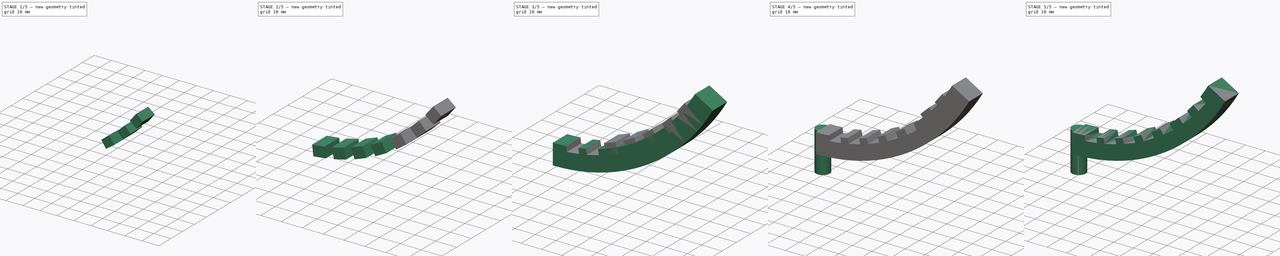
[diagram: build sequence overview — one tinted view per stage of 5, left to right]
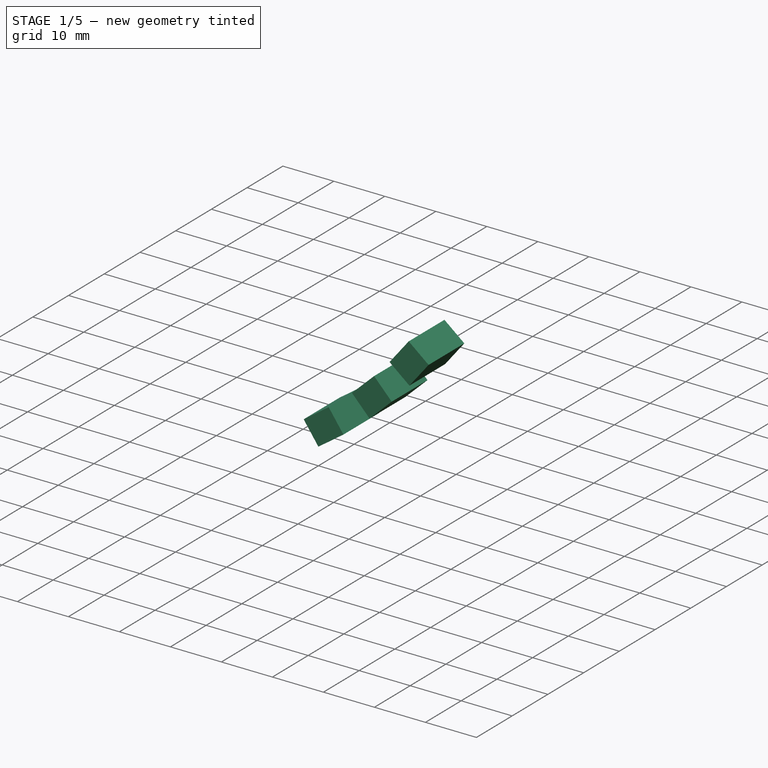
[diagram: stage 1 of 5 — iso view after this stage's code; geometry added in this stage tinted green]
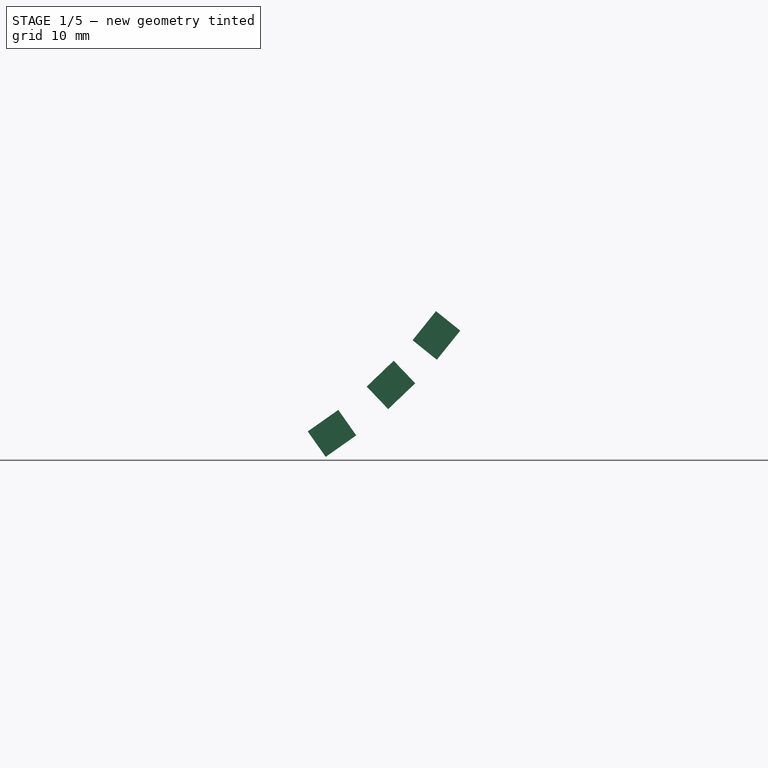
[diagram: stage 1 of 5 — front view after this stage's code; geometry added in this stage tinted green]
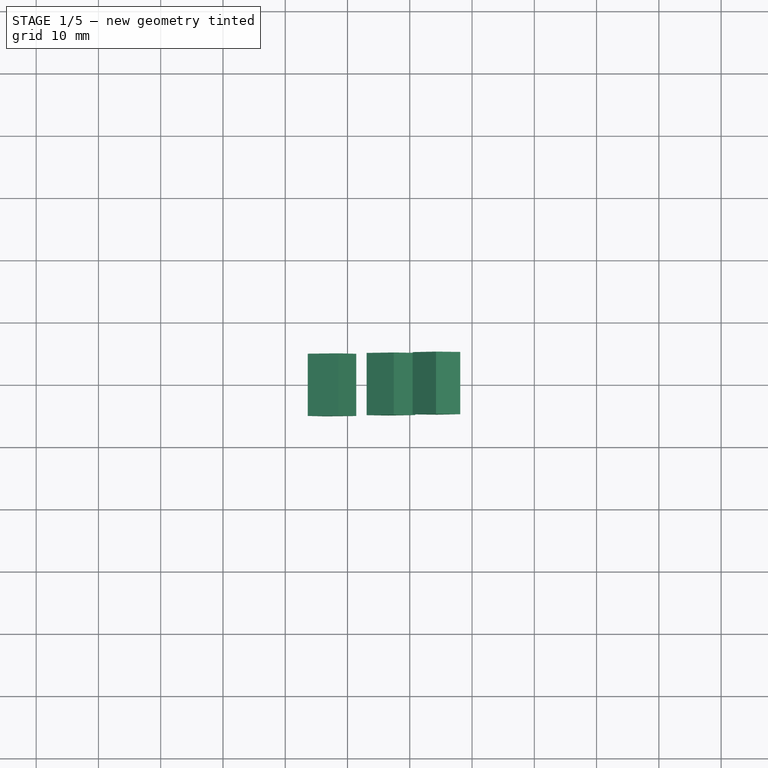
[diagram: stage 1 of 5 — top view after this stage's code; geometry added in this stage tinted green]
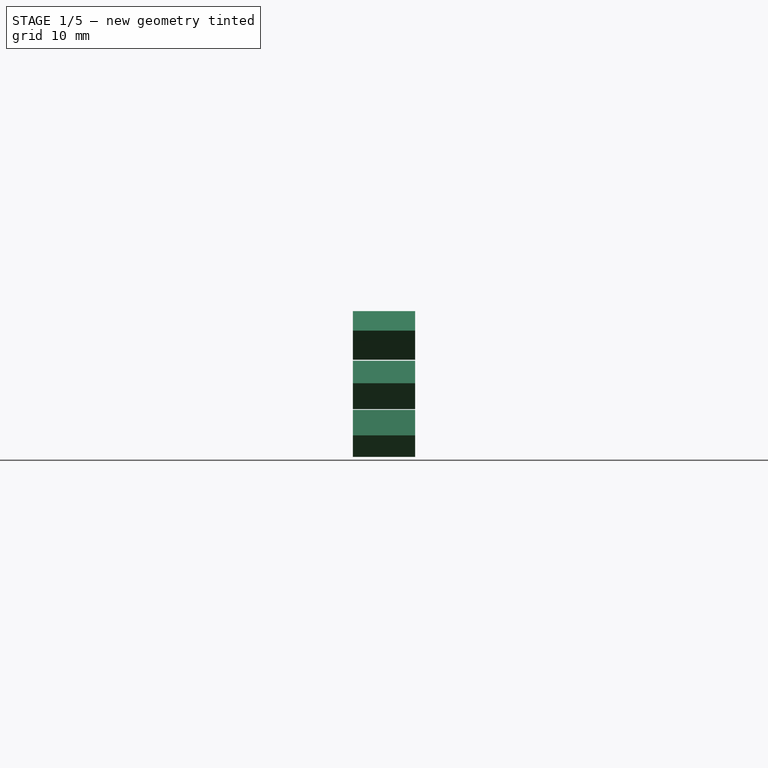
[diagram: stage 1 of 5 — right view after this stage's code; geometry added in this stage tinted green]
FCSTD DOCUMENT  (FreeCAD 0.18.4R)
Label: sketch_pcb
License: All rights reserved
LicenseURL: http://en.wikipedia.org/wiki/All_rights_reserved
objects: Sketcher::SketchObject×11, Part::Extrusion×9, Part::Cut×7, Part::MultiFuse×1
note: 28 computed .brp shape members not serialized (recipe doc carries the construction recipe); baked Part::Feature solids carry a one-line shape summary decoded from their .brp

FEATURE [Sketcher::SketchObject] Sketch010
  sketch-geometry (4):
    g0: LineSegment StartX=-3 StartY=5 StartZ=0 EndX=3 EndY=5 EndZ=0
    g1: LineSegment StartX=3 StartY=5 StartZ=0 EndX=3 EndY=-5 EndZ=0
    g2: LineSegment StartX=3 StartY=-5 StartZ=0 EndX=-3 EndY=-5 EndZ=0
    g3: LineSegment StartX=-3 StartY=-5 StartZ=0 EndX=-3 EndY=5 EndZ=0
  constraints (12):
    c: Coincident(g0,g1)
    c: Coincident(g1,g2)
    c: Coincident(g2,g3)
    c: Coincident(g3,g0)
    c: Horizontal(g0)
    c: Horizontal(g2)
    c: Vertical(g1)
    c: Vertical(g3)
    c: Distance(g0) = 6
    c: Distance(g1) = 10
    c: Distance(g-1,g2) = 5
    c: Distance(g-1,g1) = 3
FEATURE [Part::Extrusion] Extrude011
  Base = -> Sketch010
  Dir = (0,0,1)
  DirMode = 2
  FaceMakerClass = Part::FaceMakerBullseye
  LengthFwd = 5
  LengthRev = 0
  Placement = pos=(47.5086,0,25.0524) rot=(0,-1,0;0.613658rad)
  Solid = true
  Symmetric = true
FEATURE [Sketcher::SketchObject] Sketch011
  sketch-geometry (4):
    g0: LineSegment StartX=-3 StartY=5 StartZ=0 EndX=3 EndY=5 EndZ=0
    g1: LineSegment StartX=3 StartY=5 StartZ=0 EndX=3 EndY=-5 EndZ=0
    g2: LineSegment StartX=3 StartY=-5 StartZ=0 EndX=-3 EndY=-5 EndZ=0
    g3: LineSegment StartX=-3 StartY=-5 StartZ=0 EndX=-3 EndY=5 EndZ=0
  constraints (12):
    c: Coincident(g0,g1)
    c: Coincident(g1,g2)
    c: Coincident(g2,g3)
    c: Coincident(g3,g0)
    c: Horizontal(g0)
    c: Horizontal(g2)
    c: Vertical(g1)
    c: Vertical(g3)
    c: Distance(g0) = 6
    c: Distance(g1) = 10
    c: Distance(g-1,g2) = 5
    c: Distance(g-1,g1) = 3
FEATURE [Part::Extrusion] Extrude012
  Base = -> Sketch011
  Dir = (0,0,1)
  DirMode = 2
  FaceMakerClass = Part::FaceMakerBullseye
  LengthFwd = 5
  LengthRev = 0
  Placement = pos=(56.977,0,32.8353) rot=(0,-1,0;0.76236rad)
  Solid = true
  Symmetric = true
FEATURE [Sketcher::SketchObject] Sketch012
  sketch-geometry (4):
    g0: LineSegment StartX=-3 StartY=5 StartZ=0 EndX=3 EndY=5 EndZ=0
    g1: LineSegment StartX=3 StartY=5 StartZ=0 EndX=3 EndY=-5 EndZ=0
    g2: LineSegment StartX=3 StartY=-5 StartZ=0 EndX=-3 EndY=-5 EndZ=0
    g3: LineSegment StartX=-3 StartY=-5 StartZ=0 EndX=-3 EndY=5 EndZ=0
  constraints (12):
    c: Coincident(g0,g1)
    c: Coincident(g1,g2)
    c: Coincident(g2,g3)
    c: Coincident(g3,g0)
    c: Horizontal(g0)
    c: Horizontal(g2)
    c: Vertical(g1)
    c: Vertical(g3)
    c: Distance(g0) = 6
    c: Distance(g1) = 10
    c: Distance(g-1,g2) = 5
    c: Distance(g-1,g1) = 3
FEATURE [Part::Extrusion] Extrude013
  Base = -> Sketch012
  Dir = (0,0,1)
  DirMode = 2
  FaceMakerClass = Part::FaceMakerBullseye
  LengthFwd = 5
  LengthRev = 0
  Placement = pos=(64.2773,0,40.7827) rot=(0,-1,0;0.89326rad)
  Solid = true
  Symmetric = true
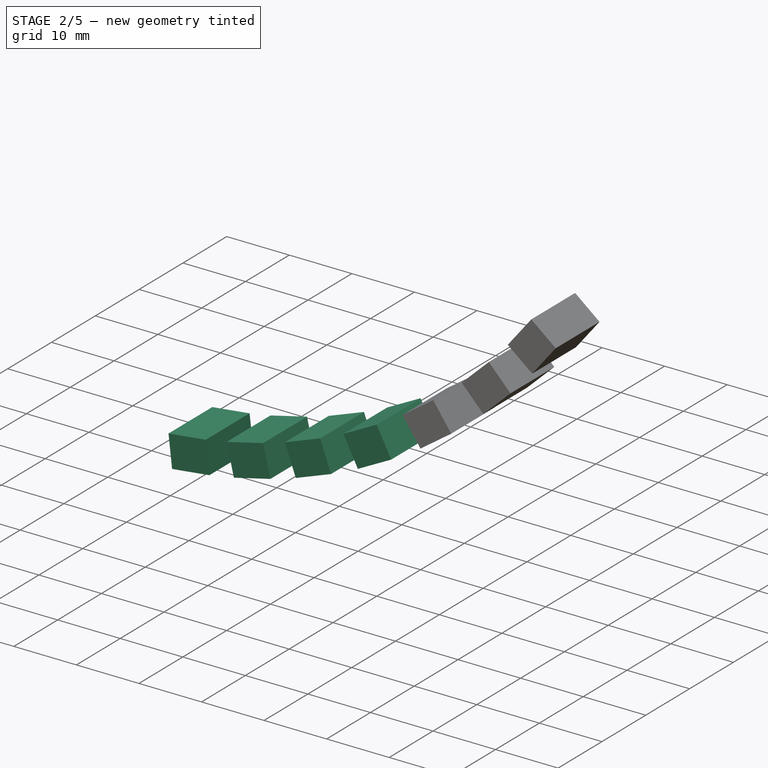
[diagram: stage 2 of 5 — iso view after this stage's code; geometry added in this stage tinted green]
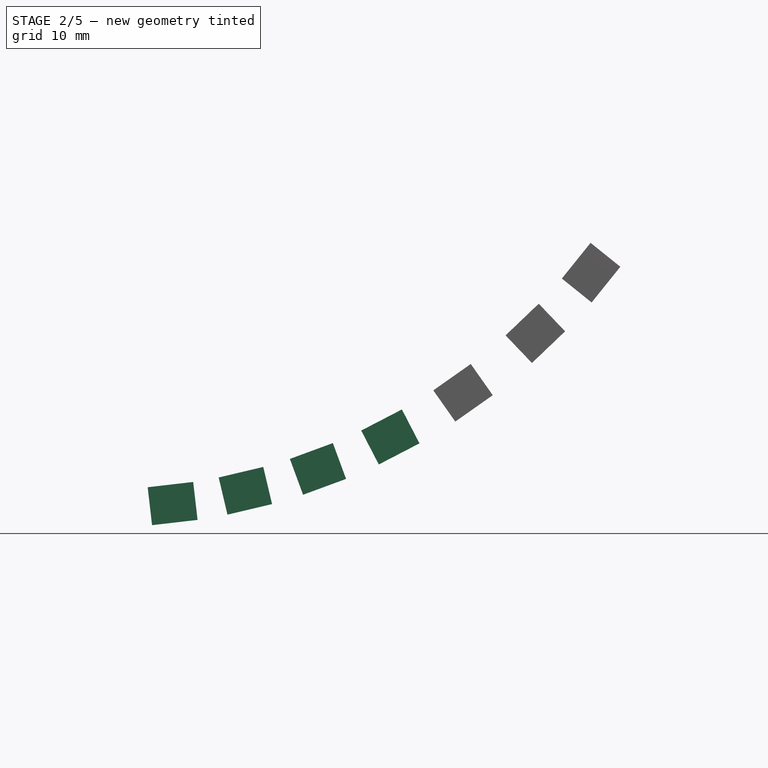
[diagram: stage 2 of 5 — front view after this stage's code; geometry added in this stage tinted green]
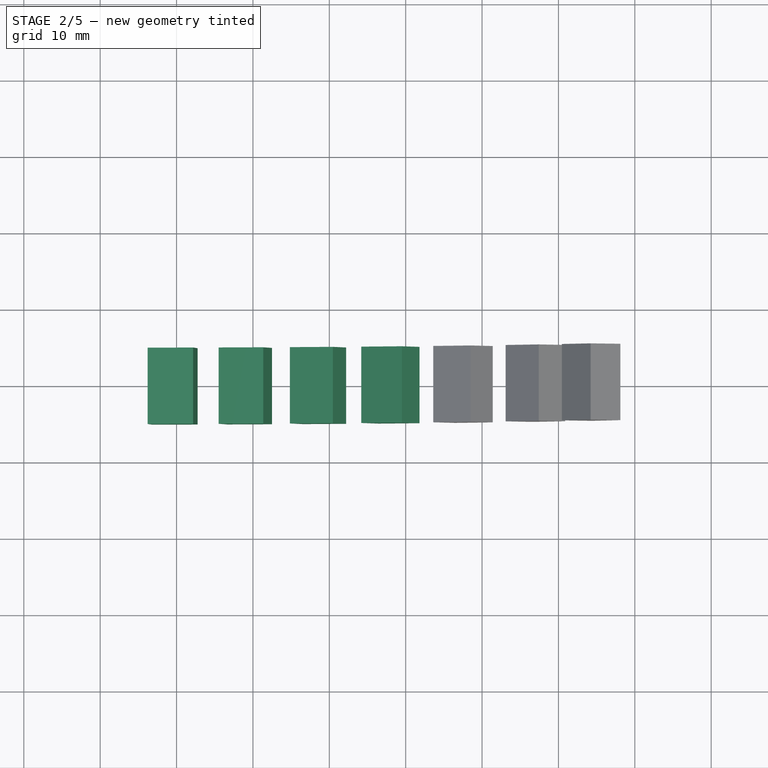
[diagram: stage 2 of 5 — top view after this stage's code; geometry added in this stage tinted green]
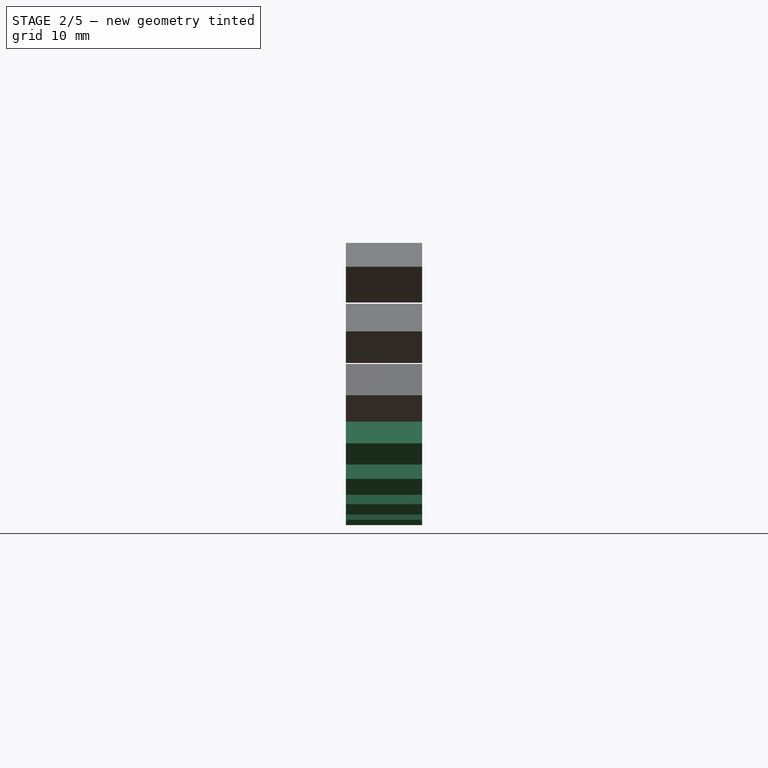
[diagram: stage 2 of 5 — right view after this stage's code; geometry added in this stage tinted green]
FEATURE [Sketcher::SketchObject] Sketch005
  sketch-geometry (4):
    g0: LineSegment StartX=-3 StartY=5 StartZ=0 EndX=3 EndY=5 EndZ=0
    g1: LineSegment StartX=3 StartY=5 StartZ=0 EndX=3 EndY=-5 EndZ=0
    g2: LineSegment StartX=3 StartY=-5 StartZ=0 EndX=-3 EndY=-5 EndZ=0
    g3: LineSegment StartX=-3 StartY=-5 StartZ=0 EndX=-3 EndY=5 EndZ=0
  constraints (12):
    c: Coincident(g0,g1)
    c: Coincident(g1,g2)
    c: Coincident(g2,g3)
    c: Coincident(g3,g0)
    c: Horizontal(g0)
    c: Horizontal(g2)
    c: Vertical(g1)
    c: Vertical(g3)
    c: Distance(g0) = 6
    c: Distance(g1) = 10
    c: Distance(g-1,g2) = 5
    c: Distance(g-1,g1) = 3
FEATURE [Part::Extrusion] Extrude006
  Base = -> Sketch005
  Dir = (0,0,1)
  DirMode = 2
  FaceMakerClass = Part::FaceMakerBullseye
  LengthFwd = 5
  LengthRev = 0
  Placement = pos=(9.48231,0,10.5467) rot=(0,-1,0;0.115192rad)
  Solid = true
  Symmetric = true
FEATURE [Sketcher::SketchObject] Sketch007
  sketch-geometry (4):
    g0: LineSegment StartX=-3 StartY=5 StartZ=0 EndX=3 EndY=5 EndZ=0
    g1: LineSegment StartX=3 StartY=5 StartZ=0 EndX=3 EndY=-5 EndZ=0
    g2: LineSegment StartX=3 StartY=-5 StartZ=0 EndX=-3 EndY=-5 EndZ=0
    g3: LineSegment StartX=-3 StartY=-5 StartZ=0 EndX=-3 EndY=5 EndZ=0
  constraints (12):
    c: Coincident(g0,g1)
    c: Coincident(g1,g2)
    c: Coincident(g2,g3)
    c: Coincident(g3,g0)
    c: Horizontal(g0)
    c: Horizontal(g2)
    c: Vertical(g1)
    c: Vertical(g3)
    c: Distance(g0) = 6
    c: Distance(g1) = 10
    c: Distance(g-1,g2) = 5
    c: Distance(g-1,g1) = 3
FEATURE [Part::Extrusion] Extrude008
  Base = -> Sketch007
  Dir = (0,0,1)
  DirMode = 2
  FaceMakerClass = Part::FaceMakerBullseye
  LengthFwd = 5
  LengthRev = 0
  Placement = pos=(19.0071,0,12.2194) rot=(0,-1,0;0.232478rad)
  Solid = true
  Symmetric = true
FEATURE [Sketcher::SketchObject] Sketch008
  sketch-geometry (4):
    g0: LineSegment StartX=-3 StartY=5 StartZ=0 EndX=3 EndY=5 EndZ=0
    g1: LineSegment StartX=3 StartY=5 StartZ=0 EndX=3 EndY=-5 EndZ=0
    g2: LineSegment StartX=3 StartY=-5 StartZ=0 EndX=-3 EndY=-5 EndZ=0
    g3: LineSegment StartX=-3 StartY=-5 StartZ=0 EndX=-3 EndY=5 EndZ=0
  constraints (12):
    c: Coincident(g0,g1)
    c: Coincident(g1,g2)
    c: Coincident(g2,g3)
    c: Coincident(g3,g0)
    c: Horizontal(g0)
    c: Horizontal(g2)
    c: Vertical(g1)
    c: Vertical(g3)
    c: Distance(g0) = 6
    c: Distance(g1) = 10
    c: Distance(g-1,g2) = 5
    c: Distance(g-1,g1) = 3
FEATURE [Part::Extrusion] Extrude009
  Base = -> Sketch008
  Dir = (0,0,1)
  DirMode = 2
  FaceMakerClass = Part::FaceMakerBullseye
  LengthFwd = 5
  LengthRev = 0
  Placement = pos=(28.5141,0,15.0843) rot=(0,-1,0;0.352906rad)
  Solid = true
  Symmetric = true
FEATURE [Sketcher::SketchObject] Sketch009
  sketch-geometry (4):
    g0: LineSegment StartX=-3 StartY=5 StartZ=0 EndX=3 EndY=5 EndZ=0
    g1: LineSegment StartX=3 StartY=5 StartZ=0 EndX=3 EndY=-5 EndZ=0
    g2: LineSegment StartX=3 StartY=-5 StartZ=0 EndX=-3 EndY=-5 EndZ=0
    g3: LineSegment StartX=-3 StartY=-5 StartZ=0 EndX=-3 EndY=5 EndZ=0
  constraints (12):
    c: Coincident(g0,g1)
    c: Coincident(g1,g2)
    c: Coincident(g2,g3)
    c: Coincident(g3,g0)
    c: Horizontal(g0)
    c: Horizontal(g2)
    c: Vertical(g1)
    c: Vertical(g3)
    c: Distance(g0) = 6
    c: Distance(g1) = 10
    c: Distance(g-1,g2) = 5
    c: Distance(g-1,g1) = 3
FEATURE [Part::Extrusion] Extrude010
  Base = -> Sketch009
  Dir = (0,0,1)
  DirMode = 2
  FaceMakerClass = Part::FaceMakerBullseye
  LengthFwd = 5
  LengthRev = 0
  Placement = pos=(37.992,0,19.2685) rot=(0,-1,0;0.478569rad)
  Solid = true
  Symmetric = true
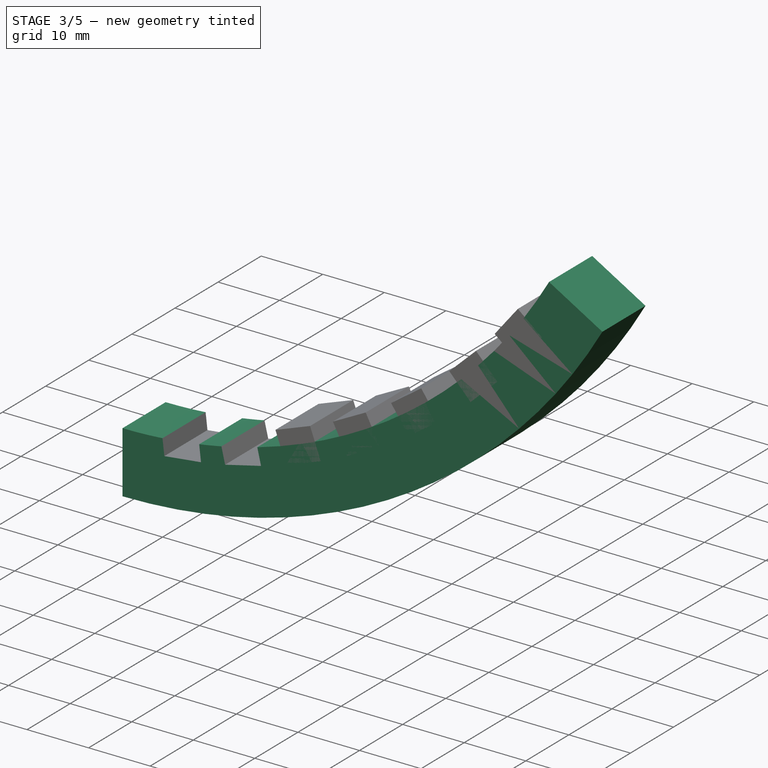
[diagram: stage 3 of 5 — iso view after this stage's code; geometry added in this stage tinted green]
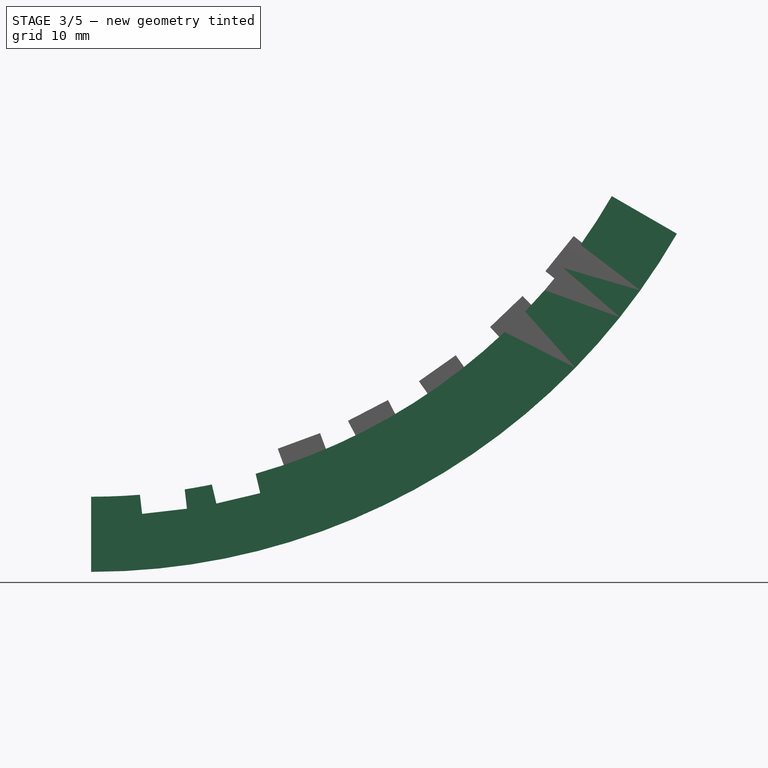
[diagram: stage 3 of 5 — front view after this stage's code; geometry added in this stage tinted green]
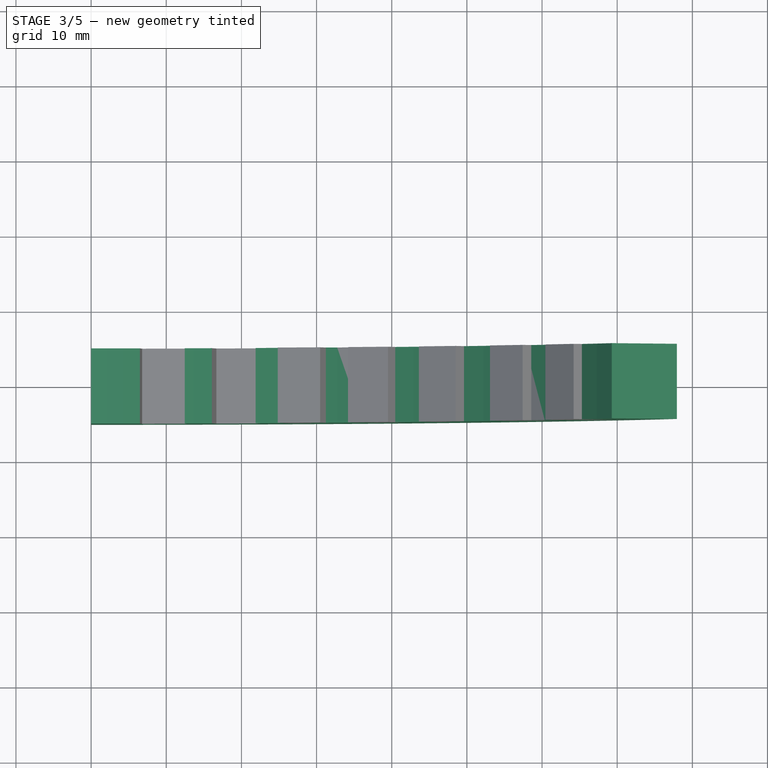
[diagram: stage 3 of 5 — top view after this stage's code; geometry added in this stage tinted green]
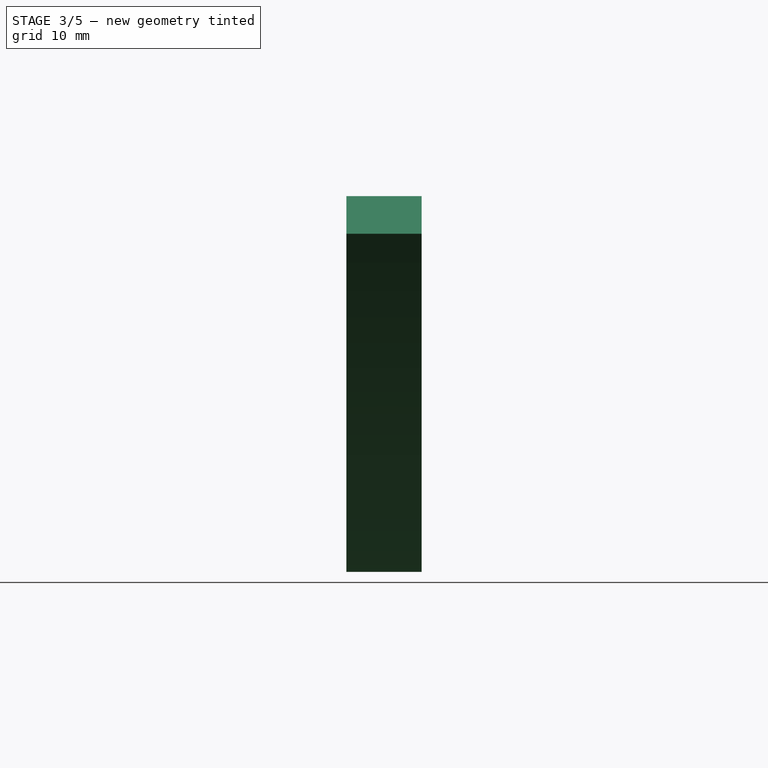
[diagram: stage 3 of 5 — right view after this stage's code; geometry added in this stage tinted green]
FEATURE [Sketcher::SketchObject] Sketch002
  Placement = pos=(0,0,0) rot=(1,0,0;1.5708rad)
  sketch-geometry (9):
    g0: ArcOfCircle CenterX=7.1888e-05 CenterY=90 CenterZ=0 NormalX=0 NormalY=0 NormalZ=1 AngleXU=0 Radius=90 StartAngle=4.71239 EndAngle=5.75959
    g1: LineSegment [constr] StartX=7.1888e-05 StartY=90 StartZ=0 EndX=77.9423 EndY=44.9999 EndZ=0
    g2: LineSegment [constr] StartX=7.1888e-05 StartY=90 StartZ=0 EndX=3.4e-14 EndY=0 EndZ=0
    g3: LineSegment [constr] StartX=3.4e-14 StartY=0 StartZ=0 EndX=50 EndY=0 EndZ=0
    g4: ArcOfCircle CenterX=7.1888e-05 CenterY=90 CenterZ=0 NormalX=0 NormalY=0 NormalZ=1 AngleXU=0 Radius=80 StartAngle=4.71239 EndAngle=5.75959
    g5: LineSegment [constr] StartX=3.4e-14 StartY=0 StartZ=0 EndX=3.4e-14 EndY=10 EndZ=0
    g6: LineSegment [constr] StartX=7.1888e-05 StartY=90 StartZ=0 EndX=69.2821 EndY=49.9999 EndZ=0
    g7: LineSegment StartX=69.2821 StartY=49.9999 StartZ=0 EndX=77.9423 EndY=44.9999 EndZ=0
    g8: LineSegment StartX=3.4e-14 StartY=10 StartZ=0 EndX=3.4e-14 EndY=0 EndZ=0
  constraints (24):
    c: Coincident(g-1,g0)
    c: Coincident(g1,g0)
    c: Coincident(g1,g0)
    c: Coincident(g2,g0)
    c: Coincident(g0,g2)
    c: Angle(g2,g1) = 1.0472
    c: Coincident(g3,g0)
    c: Horizontal(g3)
    c: Tangent(g0,g3)
    c: DistanceY(g2,g2) = 90
    c: Distance(g3) = 50
    c: Vertical(g5)
    c: DistanceY(g5,g5) = 10
    c: Coincident(g5,g0)
    c: Coincident(g4,g5)
    c: Coincident(g6,g0)
    c: Distance(g6) = 80
    c: Angle(g2,g6) = 1.0472
    c: Coincident(g4,g6)
    c: Coincident(g7,g4)
    c: Coincident(g0,g7)
    c: Coincident(g4,g8)
    c: Coincident(g8,g0)
    c: Radius(g4) = 80
FEATURE [Part::Extrusion] Extrude002
  Base = -> Sketch002
  Dir = (0,1,0)
  DirMode = 0
  FaceMakerClass = Part::FaceMakerBullseye
  LengthFwd = 10
  LengthRev = 0
  Solid = true
  Symmetric = true
FEATURE [Part::Cut] Cut
  Base = -> Extrude002
  Tool = -> Extrude006
FEATURE [Part::Cut] Cut001
  Base = -> Cut
  Tool = -> Extrude008
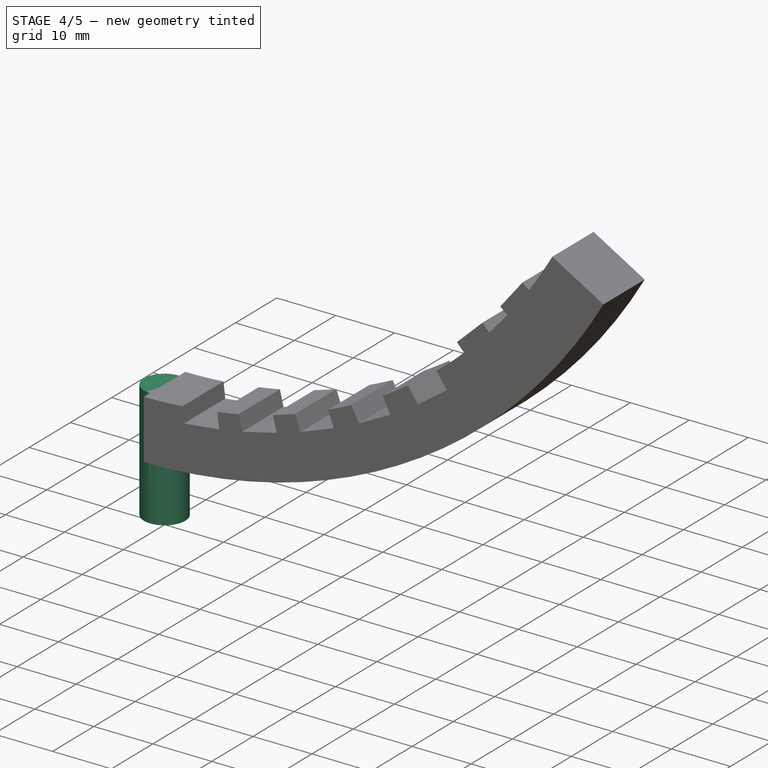
[diagram: stage 4 of 5 — iso view after this stage's code; geometry added in this stage tinted green]
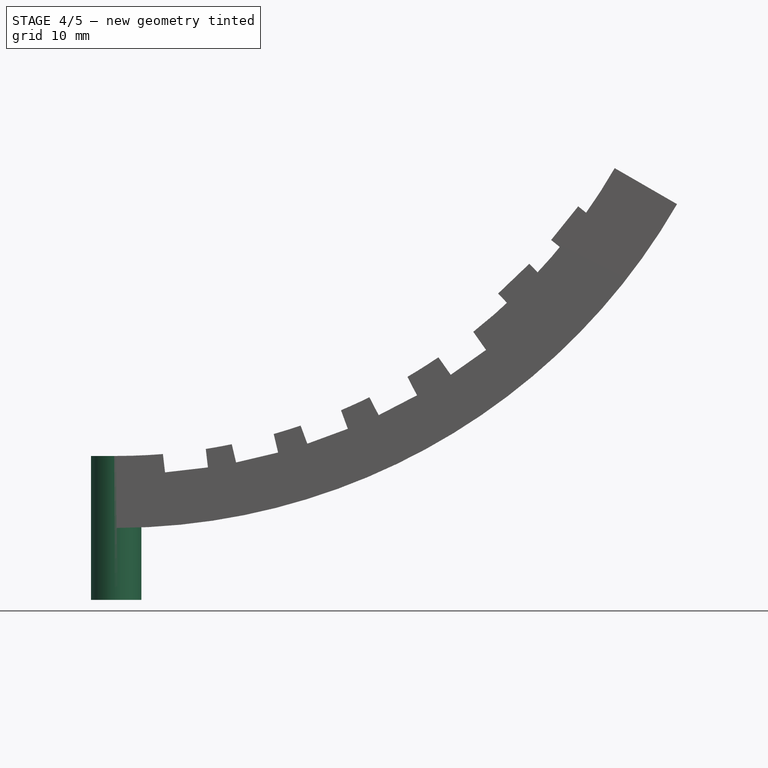
[diagram: stage 4 of 5 — front view after this stage's code; geometry added in this stage tinted green]
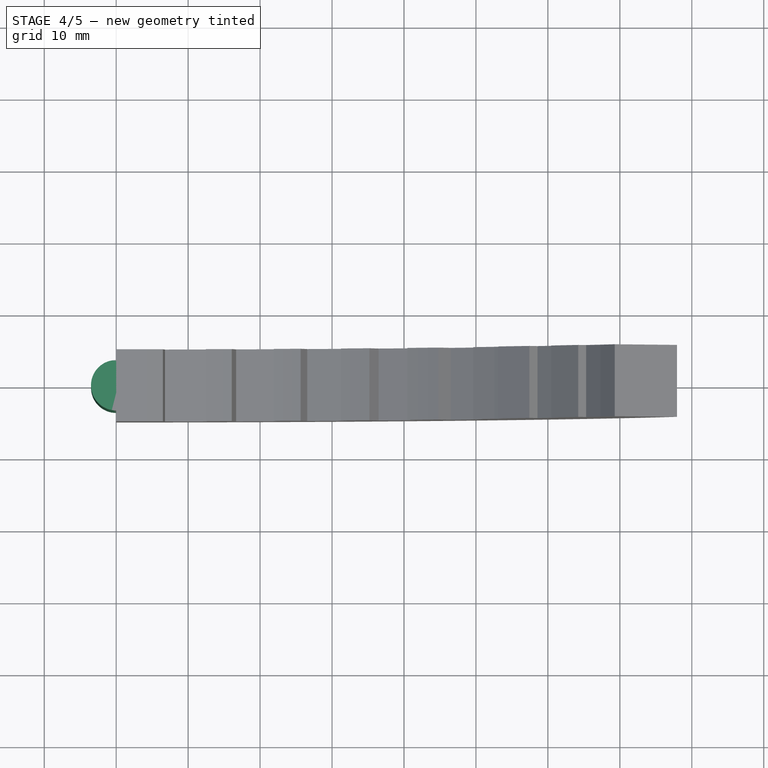
[diagram: stage 4 of 5 — top view after this stage's code; geometry added in this stage tinted green]
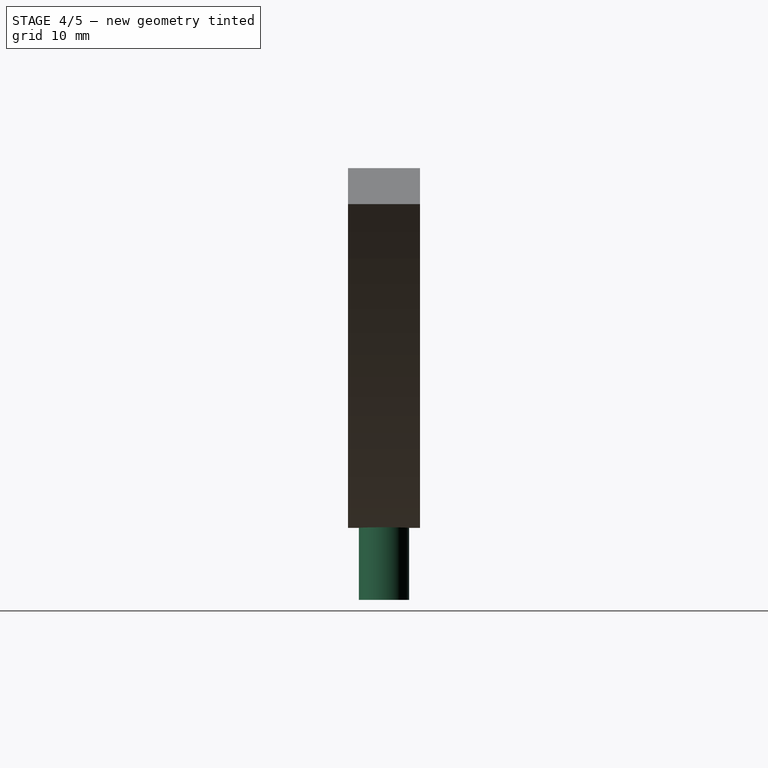
[diagram: stage 4 of 5 — right view after this stage's code; geometry added in this stage tinted green]
FEATURE [Sketcher::SketchObject] Sketch  label="pcb"
  Placement = pos=(0,0,0) rot=(-1,0,0;4.71239rad)
  sketch-geometry (13):
    g0: LineSegment [constr] StartX=-100 StartY=90 StartZ=0 EndX=0 EndY=90 EndZ=0
    g1: LineSegment [constr] StartX=0 StartY=0 StartZ=0 EndX=0 EndY=90 EndZ=0
    g2: LineSegment StartX=16.6856 StartY=1.86556 StartZ=0 EndX=16.6856 EndY=-0.874439 EndZ=0
    g3: ArcOfCircle CenterX=0 CenterY=90 CenterZ=0 NormalX=0 NormalY=0 NormalZ=1 AngleXU=0 Radius=83.4 StartAngle=4.79058 EndAngle=5.67564
    g4: ArcOfCircle CenterX=0 CenterY=90 CenterZ=0 NormalX=0 NormalY=0 NormalZ=1 AngleXU=0 Radius=98 StartAngle=5.09608 EndAngle=5.67564
    g5: LineSegment StartX=68.4755 StartY=42.3905 StartZ=0 EndX=80.4629 EndY=34.056 EndZ=0
    g6: LineSegment StartX=16.6856 StartY=-0.874439 StartZ=0 EndX=36.6856 EndY=-0.874439 EndZ=0
    g7: LineSegment StartX=6.51447 StartY=6.85482 StartZ=0 EndX=6.51447 EndY=0.536869 EndZ=0
    g8: ArcOfCircle CenterX=0 CenterY=90 CenterZ=0 NormalX=0 NormalY=0 NormalZ=1 AngleXU=0 Radius=89.7 StartAngle=4.78508 EndAngle=4.89949
    g9: GeomPoint X=16.69 Y=9.04 Z=0
    g10: LineSegment [constr] StartX=0 StartY=90 StartZ=0 EndX=68.4755 EndY=42.3905 EndZ=0
    g11: LineSegment [constr] StartX=0 StartY=90 StartZ=0 EndX=80.4629 EndY=34.056 EndZ=0
    g12: LineSegment [constr] StartX=0 StartY=90 StartZ=0 EndX=6.51447 EndY=6.85482 EndZ=0
  constraints (35):
    c: Horizontal(g0)
    c: DistanceX(g0,g0) = 100
    c: Coincident(g1,g-1)
    c: Vertical(g1)
    c: Distance(g1) = 90
    c: Vertical(g2)
    c: Coincident(g5,g3)
    c: Coincident(g5,g4)
    c: Coincident(g3,g4)
    c: Coincident(g7,g3)
    c: Coincident(g7,g8)
    c: Coincident(g8,g2)
    c: Coincident(g2,g6)
    c: Coincident(g6,g4)
    c: Horizontal(g6)
    c: Vertical(g7)
    c: Coincident(g8,g3)
    c: Radius(g3) = 83.4
    c: Radius(g4) = 98
    c: Coincident(g0,g1)
    c: Coincident(g3,g0)
    c: Distance(g6) = 20
    c: Distance(g2) = 2.74
    c: DistanceY(g9,g3) = 80.96
    c: DistanceX(g3,g9) = 16.69
    c: Radius(g8) = 89.7
    c: Coincident(g10,g3)
    c: Coincident(g10,g3)
    c: Coincident(g11,g3)
    c: Coincident(g11,g4)
    c: Parallel(g10,g11)
    c: Angle(g1,g10) = 0.963247
    c: Coincident(g12,g3)
    c: Coincident(g12,g3)
    c: Angle(g12,g10) = 0.885056
FEATURE [Sketcher::SketchObject] Sketch001
  sketch-geometry (1):
    g0: Circle CenterX=0 CenterY=0 CenterZ=0 NormalX=0 NormalY=0 NormalZ=1 AngleXU=0 Radius=3.5
  constraints (2):
    c: Coincident(g0,g-1)
    c: Radius(g0) = 3.5
FEATURE [Part::Extrusion] Extrude001
  Base = -> Sketch001
  Dir = (0,0,1)
  DirMode = 0
  FaceMakerClass = Part::FaceMakerBullseye
  LengthFwd = 20
  LengthRev = 0
  Solid = true
  Symmetric = true
FEATURE [Part::Cut] Cut002
  Base = -> Cut001
  Tool = -> Extrude009
FEATURE [Part::Cut] Cut003
  Base = -> Cut002
  Tool = -> Extrude010
FEATURE [Part::Cut] Cut004
  Base = -> Cut003
  Tool = -> Extrude011
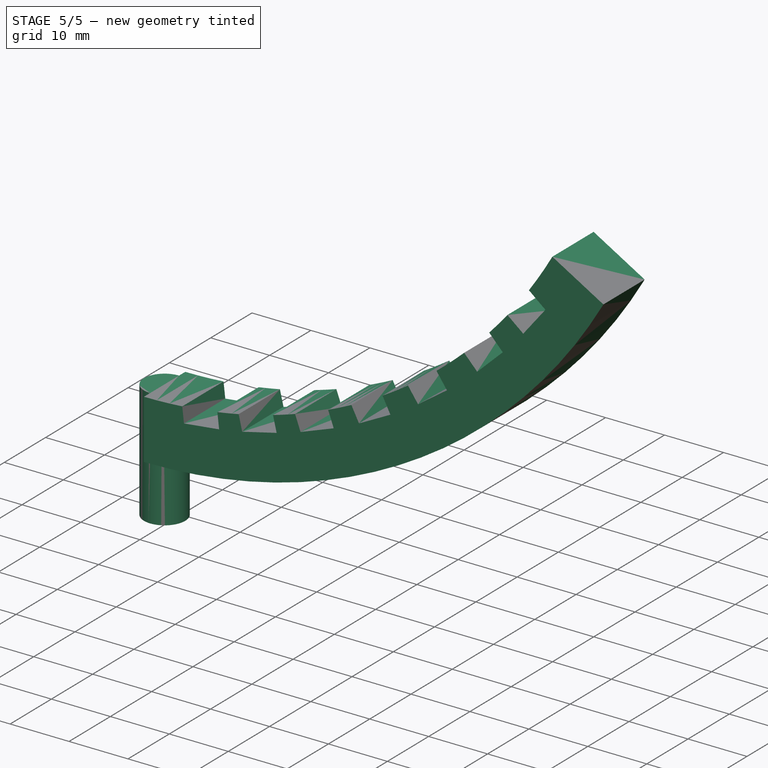
[diagram: stage 5 of 5 — iso view after this stage's code; geometry added in this stage tinted green]
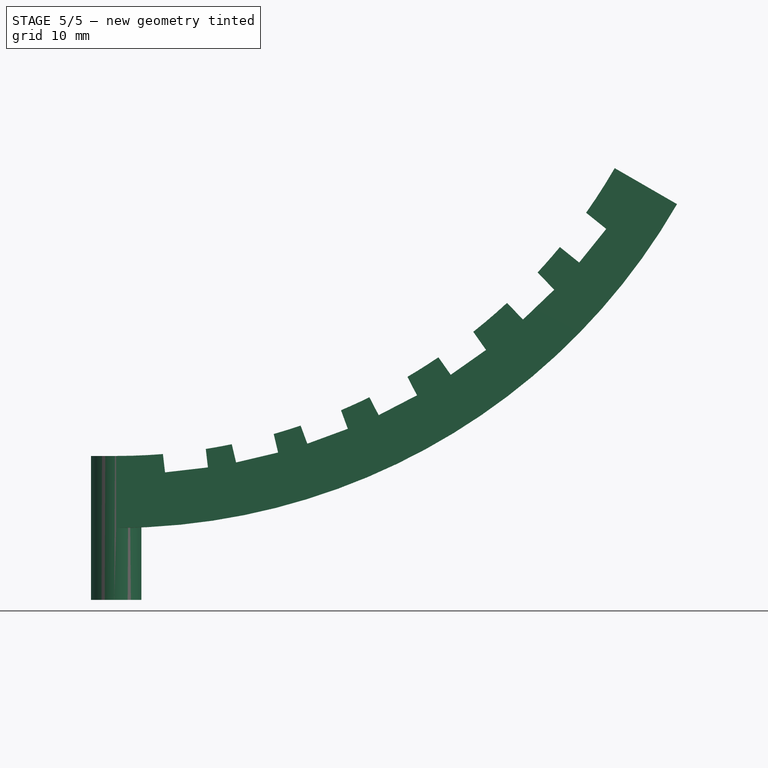
[diagram: stage 5 of 5 — front view after this stage's code; geometry added in this stage tinted green]
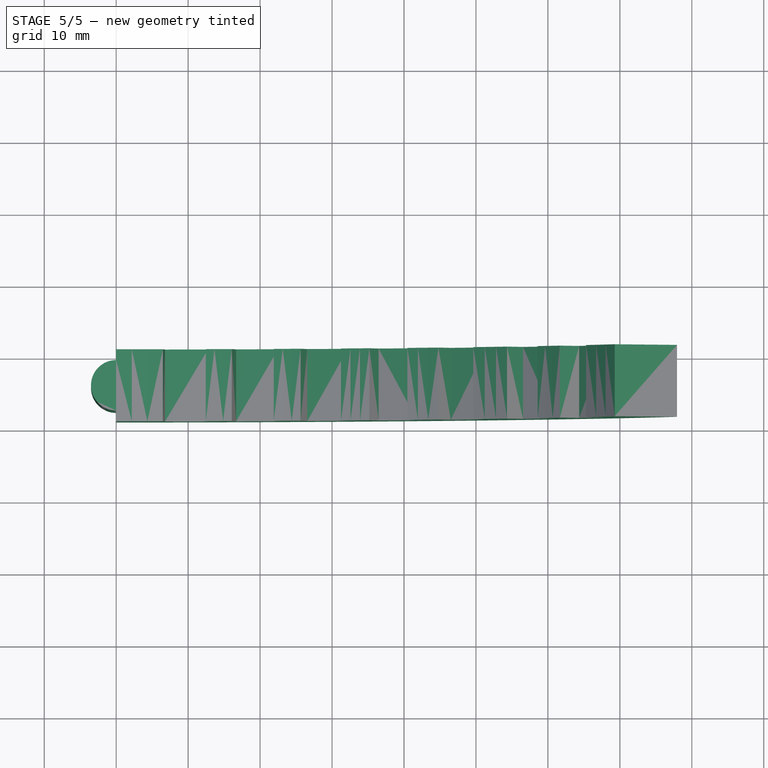
[diagram: stage 5 of 5 — top view after this stage's code; geometry added in this stage tinted green]
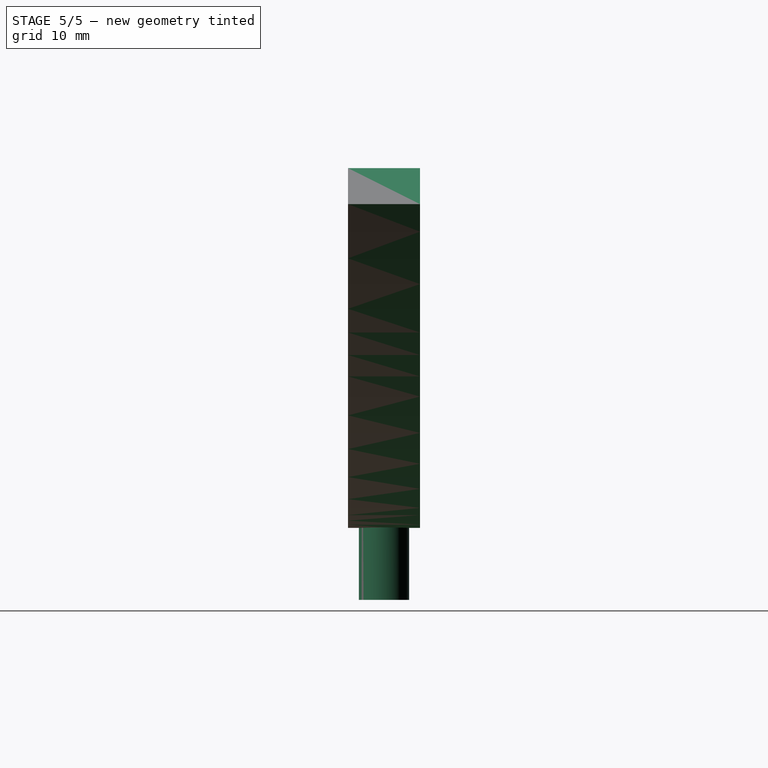
[diagram: stage 5 of 5 — right view after this stage's code; geometry added in this stage tinted green]
FEATURE [Part::Cut] Cut005
  Base = -> Cut004
  Tool = -> Extrude012
FEATURE [Part::Cut] Cut006
  Base = -> Cut005
  Tool = -> Extrude013
FEATURE [Part::MultiFuse] Fusion
  Placement = pos=(0,6,0) rot=(0,0,1;0rad)
  Shapes = -> [Cut006,Extrude001]
FEATURE [Sketcher::SketchObject] Sketch013
  Placement = pos=(0,0,0) rot=(-1,0,0;4.71239rad)
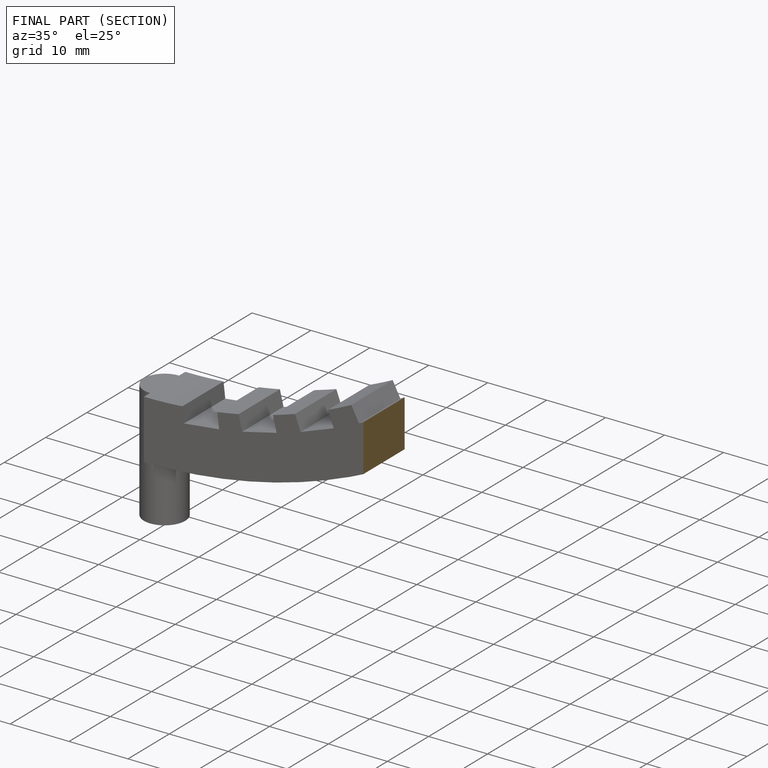
[diagram: finished part — half-section view (interior)]
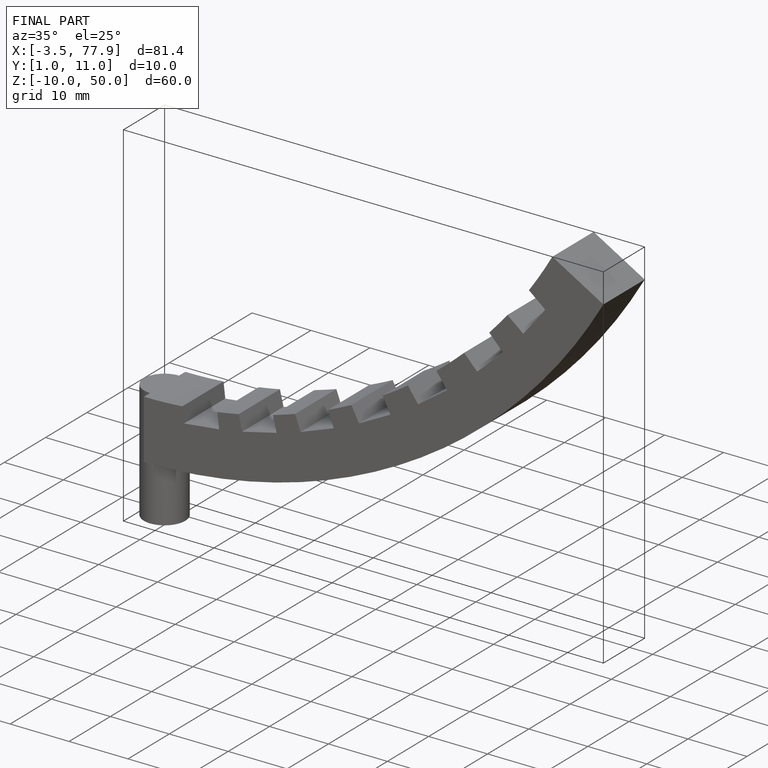
[diagram: finished part — iso view with bounding-box wireframe]
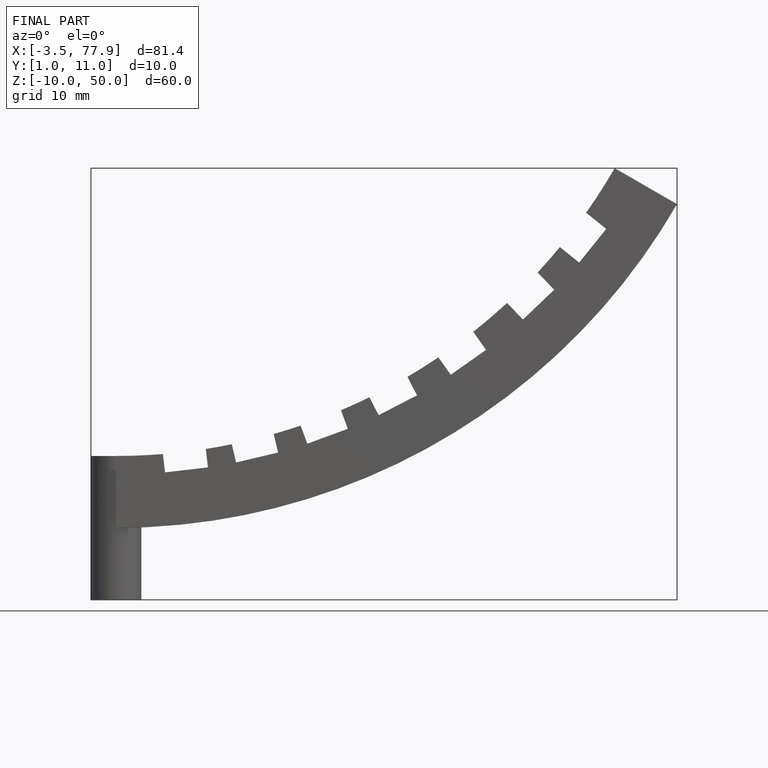
[diagram: finished part — front view with bounding-box wireframe]
